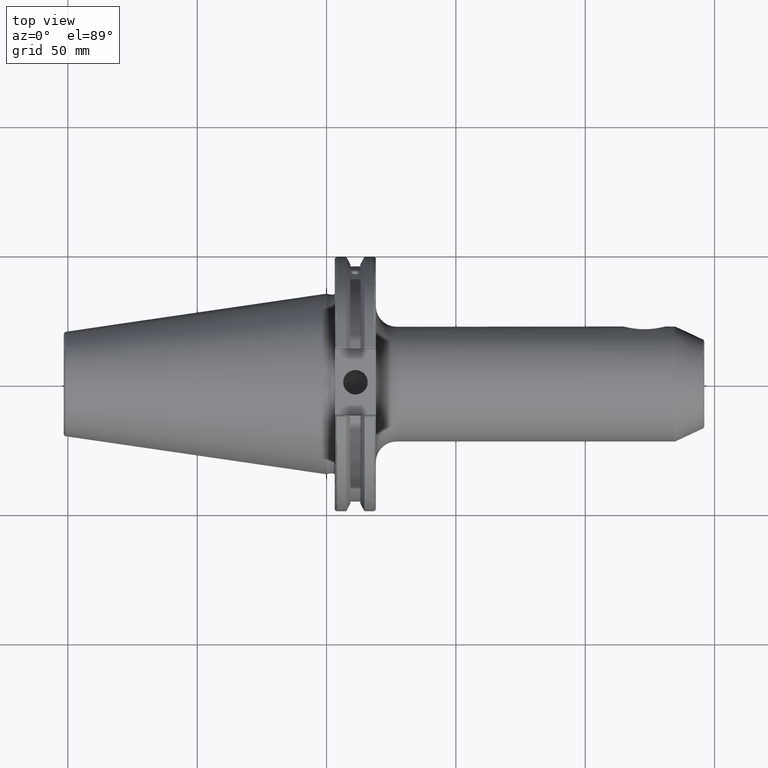
[diagram: clean part render]
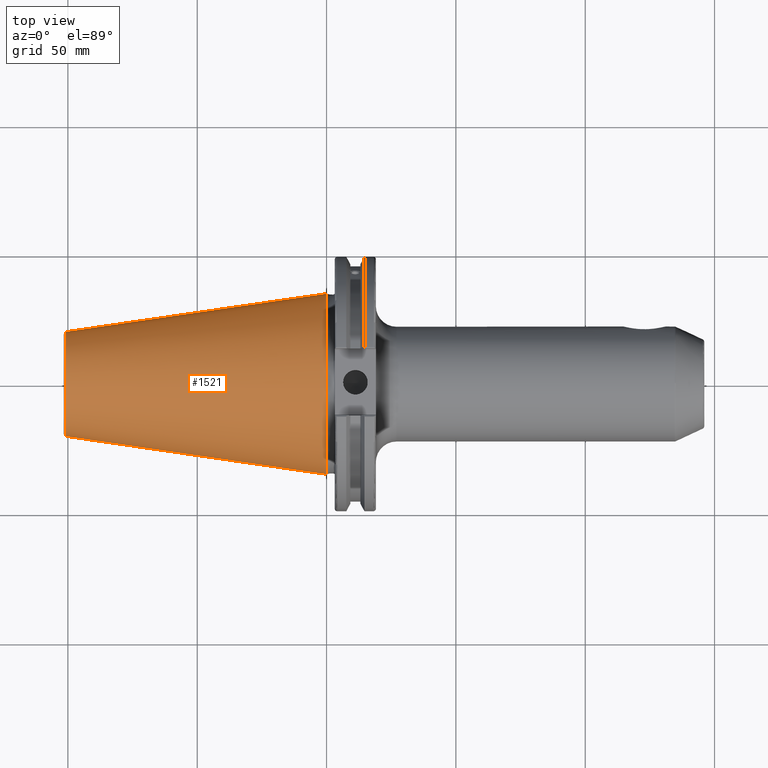
[diagram: same view with one face highlighted and labeled with its STEP entity id]
A machine part, top view. The second image highlights one B-rep face of the part: STEP entity #1521.
In plain terms, the highlighted conical surface has half-angle 8.297 deg.
Its self-contained STEP definition (entity closure, byte-faithful):
#223=FACE_OUTER_BOUND('',#327,.T.);
#327=EDGE_LOOP('',(#1320,#1321,#1322,#1323,#1324));
#433=LINE('',#3098,#525);
#525=VECTOR('',#2058,27.5166666666666);
#600=CIRCLE('',#1688,20.233121911427);
#601=CIRCLE('',#1689,20.233121911427);
#605=CIRCLE('',#1695,34.925);
#758=VERTEX_POINT('',#3085);
#759=VERTEX_POINT('',#3086);
#762=VERTEX_POINT('',#3096);
#961=EDGE_CURVE('',#758,#759,#600,.T.);
#962=EDGE_CURVE('',#759,#758,#601,.T.);
#966=EDGE_CURVE('',#762,#762,#605,.T.);
#967=EDGE_CURVE('',#762,#759,#433,.T.);
#1320=ORIENTED_EDGE('',*,*,#966,.F.);
#1321=ORIENTED_EDGE('',*,*,#967,.T.);
#1322=ORIENTED_EDGE('',*,*,#961,.F.);
#1323=ORIENTED_EDGE('',*,*,#962,.F.);
#1324=ORIENTED_EDGE('',*,*,#967,.F.);
#1459=CONICAL_SURFACE('',#1694,27.5166666666666,0.14481249823894);
#1521=ADVANCED_FACE('',(#223),#1459,.T.);
#1688=AXIS2_PLACEMENT_3D('',#3087,#2042,#2043);
#1689=AXIS2_PLACEMENT_3D('',#3088,#2044,#2045);
#1694=AXIS2_PLACEMENT_3D('',#3095,#2054,#2055);
#1695=AXIS2_PLACEMENT_3D('',#3097,#2056,#2057);
#2042=DIRECTION('center_axis',(-1.,0.,0.));
#2043=DIRECTION('ref_axis',(0.,-1.,3.06161699786838E-17));
#2044=DIRECTION('center_axis',(-1.,0.,0.));
#2045=DIRECTION('ref_axis',(0.,-1.,3.06161699786838E-17));
#2054=DIRECTION('center_axis',(1.,0.,0.));
#2055=DIRECTION('ref_axis',(0.,1.,0.));
#2056=DIRECTION('center_axis',(1.,0.,0.));
#2057=DIRECTION('ref_axis',(0.,0.,-1.));
#2058=DIRECTION('',(-0.989532981063281,0.144306893071729,1.76724974695192E-17));
#3085=CARTESIAN_POINT('',(-100.744306893072,-2.47784279855872E-15,20.233121911427));
#3086=CARTESIAN_POINT('',(-100.744306893072,-20.233121911427,-2.47784279855872E-15));
#3087=CARTESIAN_POINT('Origin',(-100.744306893072,0.,-3.09730349819841E-15));
#3088=CARTESIAN_POINT('Origin',(-100.744306893072,0.,-3.09730349819841E-15));
#3095=CARTESIAN_POINT('Origin',(-50.8,0.,0.));
#3096=CARTESIAN_POINT('',(-8.88178419700125E-15,-34.925,-4.27707894602213E-15));
#3097=CARTESIAN_POINT('Origin',(0.,0.,0.));
#3098=CARTESIAN_POINT('',(-50.8,-27.5166666666666,-3.3698197756538E-15));